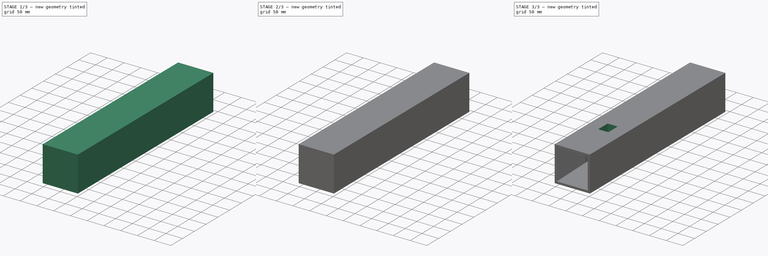
[diagram: build sequence overview — one tinted view per stage of 3, left to right]
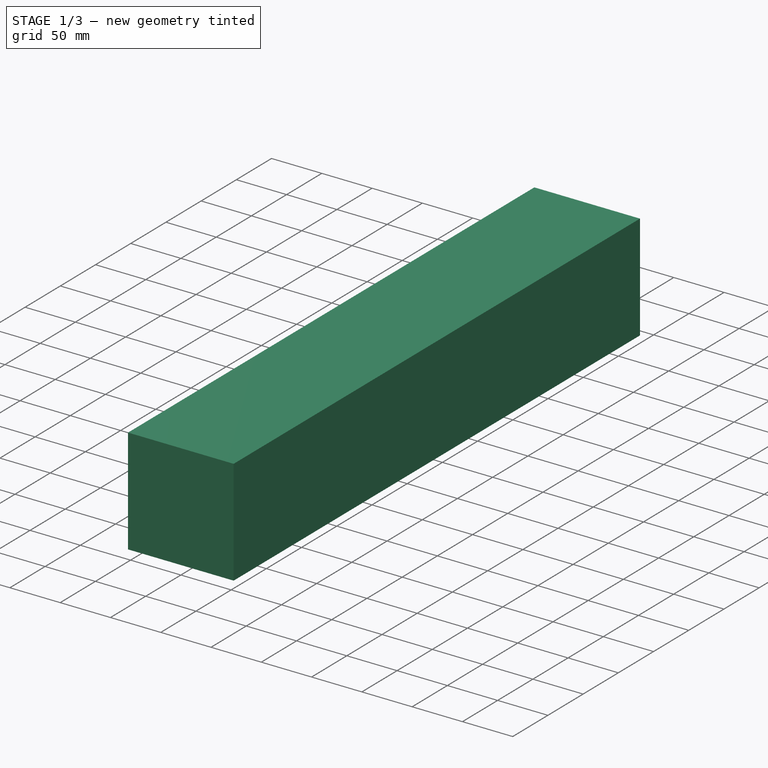
[diagram: stage 1 of 3 — iso view after this stage's code; geometry added in this stage tinted green]
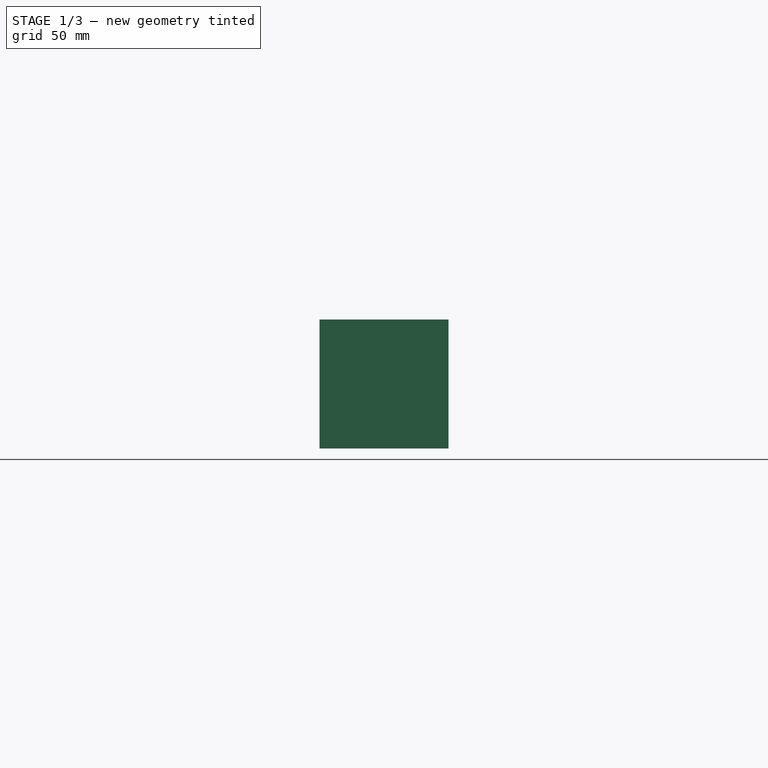
[diagram: stage 1 of 3 — front view after this stage's code; geometry added in this stage tinted green]
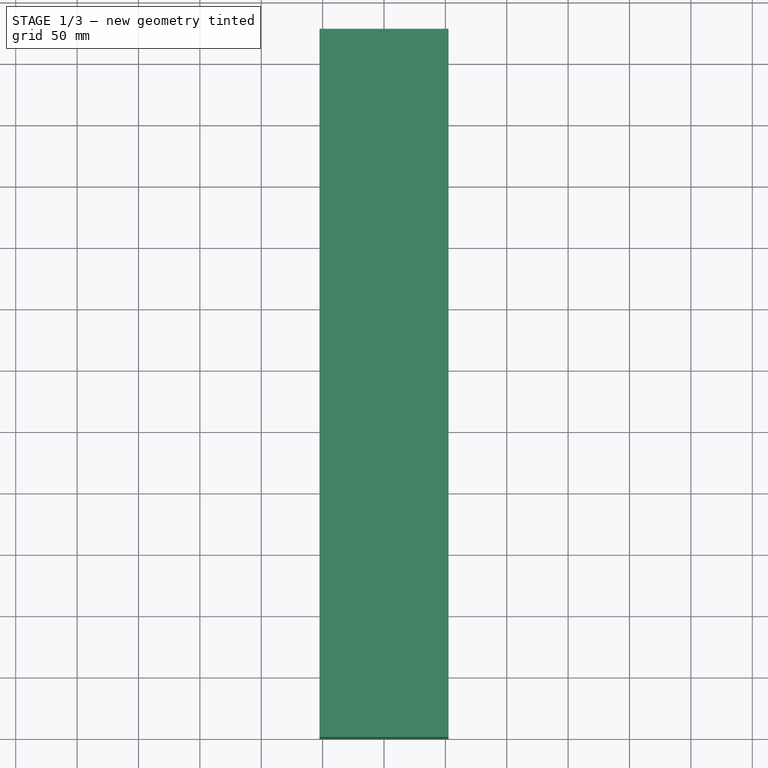
[diagram: stage 1 of 3 — top view after this stage's code; geometry added in this stage tinted green]
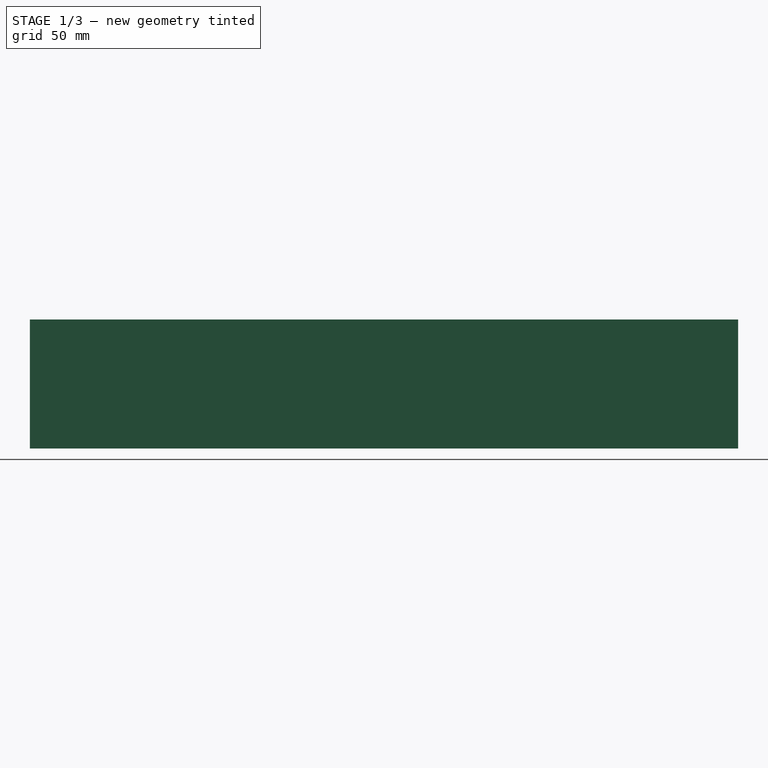
[diagram: stage 1 of 3 — right view after this stage's code; geometry added in this stage tinted green]
FCSTD DOCUMENT  (FreeCAD 2024.2R37240 (Git))
Label: Tunel de vento
License: All rights reserved
LicenseURL: https://en.wikipedia.org/wiki/All_rights_reserved
objects: Sketcher::SketchObject×5, PartDesign::Body×5, PartDesign::Pad×4, PartDesign::Boolean×2, PartDesign::Pocket×1
note: 22 computed .brp shape members not serialized (recipe doc carries the construction recipe); baked Part::Feature solids carry a one-line shape summary decoded from their .brp

FEATURE [PartDesign::Body] Body001
  Group = -> [Sketch001,Pad001]
  Origin = -> Origin001
  Tip = -> Pad001
FEATURE [Sketcher::SketchObject] Sketch002
  AttachmentSupport = -> [YZ_Plane002]
  FullyConstrained = true
  MapMode = 5
  Placement = pos=(0,0,0) rot=(0.57735,0.57735,0.57735;2.0944rad)
  sketch-geometry (20):
    g0: GeomPoint X=0 Y=46 Z=0
    g1: GeomPoint X=92 Y=26.5 Z=0
    g2: GeomPoint X=276 Y=26.5 Z=0
    g3: GeomPoint X=552 Y=46 Z=0
    g4: LineSegment StartX=0 StartY=46 StartZ=0 EndX=92 EndY=26.5 EndZ=0
    g5: LineSegment StartX=92 StartY=26.5 StartZ=0 EndX=276 EndY=26.5 EndZ=0
    g6: LineSegment StartX=276 StartY=26.5 StartZ=0 EndX=552 EndY=46 EndZ=0
    g7: GeomPoint X=0 Y=-46 Z=0
    g8: GeomPoint X=92 Y=-26.5 Z=0
    g9: GeomPoint X=276 Y=-26.5 Z=0
    g10: GeomPoint X=552 Y=-46 Z=0
    g11: LineSegment StartX=0 StartY=-46 StartZ=0 EndX=92 EndY=-26.5 EndZ=0
    g12: LineSegment StartX=92 StartY=-26.5 StartZ=0 EndX=276 EndY=-26.5 EndZ=0
    g13: LineSegment StartX=276 StartY=-26.5 StartZ=0 EndX=552 EndY=-46 EndZ=0
    g14: LineSegment StartX=0 StartY=-46 StartZ=0 EndX=0 EndY=46 EndZ=0
    g15: GeomPoint X=577 Y=46 Z=0
    g16: GeomPoint X=577 Y=-46 Z=0
    g17: LineSegment StartX=552 StartY=46 StartZ=0 EndX=577 EndY=46 EndZ=0
    g18: LineSegment StartX=577 StartY=-46 StartZ=0 EndX=577 EndY=46 EndZ=0
    g19: LineSegment StartX=577 StartY=-46 StartZ=0 EndX=552 EndY=-46 EndZ=0
  constraints (35):
    c: PointOnObject(g0,g-2)
    c: DistanceY(g-1,g0) = 46
    c: DistanceY(g-1,g1) = 26.5
    c: Coincident(g4,g0)
    c: Coincident(g4,g1)
    c: DistanceX(g0,g1) = 92
    c: DistanceX(g1,g2) = 184
    c: DistanceX(g2,g3) = 276
    c: Coincident(g5,g1)
    c: Coincident(g5,g2)
    c: Coincident(g5,g6)
    c: Coincident(g6,g3)
    c: DistanceY(g-1,g3) = 46
    c: DistanceY(g-1,g2) = 26.5
    c: Coincident(g11,g7)
    c: Coincident(g11,g8)
    c: Coincident(g11,g12)
    c: Coincident(g12,g9)
    c: Coincident(g12,g13)
    c: Coincident(g13,g10)
    c: Coincident(g14,g7)
    c: Coincident(g14,g0)
    c: Symmetric(g0,g7,g-1)
    c: Symmetric(g1,g8,g-1)
    c: Symmetric(g9,g2,g-1)
    c: Symmetric(g10,g3,g-1)
    c: Coincident(g17,g3)
    c: Coincident(g17,g15)
    c: Coincident(g18,g16)
    c: Coincident(g18,g15)
    c: Coincident(g19,g16)
    c: Coincident(g19,g10)
    c: Horizontal(g19)
    c: Symmetric(g15,g16,g-1)
    c: DistanceX(g3,g15) = 25
FEATURE [PartDesign::Pad] Pad002
  Direction = (1,0,0)
  Length = 46
  Length2 = 46
  Placement = pos=(0,0,0) rot=(1,1,1;2.0944rad)
  Profile = -> Sketch002
  ReferenceAxis = -> Sketch002 [N_Axis]
  Refine = true
  Suppressed = false
  Type = 4
FEATURE [PartDesign::Body] Body003
  Group = -> [Boolean]
  Origin = -> Origin003
  Tip = -> Boolean
FEATURE [Sketcher::SketchObject] Sketch003
  AttachmentSupport = -> [XZ_Plane004]
  FullyConstrained = true
  MapMode = 5
  Placement = pos=(0,0,0) rot=(1,0,0;1.5708rad)
  sketch-geometry (5):
    g0: LineSegment StartX=-52.5 StartY=-52.5 StartZ=0 EndX=52.5 EndY=-52.5 EndZ=0
    g1: LineSegment StartX=52.5 StartY=-52.5 StartZ=0 EndX=52.5 EndY=52.5 EndZ=0
    g2: LineSegment StartX=52.5 StartY=52.5 StartZ=0 EndX=-52.5 EndY=52.5 EndZ=0
    g3: LineSegment StartX=-52.5 StartY=52.5 StartZ=0 EndX=-52.5 EndY=-52.5 EndZ=0
    g4: GeomPoint X=0 Y=0 Z=0
  constraints (12):
    c: Coincident(g0,g1)
    c: Coincident(g1,g2)
    c: Coincident(g2,g3)
    c: Coincident(g3,g0)
    c: Horizontal(g0)
    c: Horizontal(g2)
    c: Vertical(g1)
    c: Vertical(g3)
    c: Symmetric(g2,g0,g4)
    c: Distance(g1,g3) = 105
    c: Distance(g0,g2) = 105
    c: Coincident(g4,g-1)
FEATURE [PartDesign::Pad] Pad003
  Direction = (0,-1,2e-16)
  Length = 577
  Length2 = 10
  Placement = pos=(0,0,0) rot=(1,0,0;1.5708rad)
  Profile = -> Sketch003
  ReferenceAxis = -> Sketch003 [N_Axis]
  Refine = true
  Reversed = true
  Suppressed = false
  Type = 0
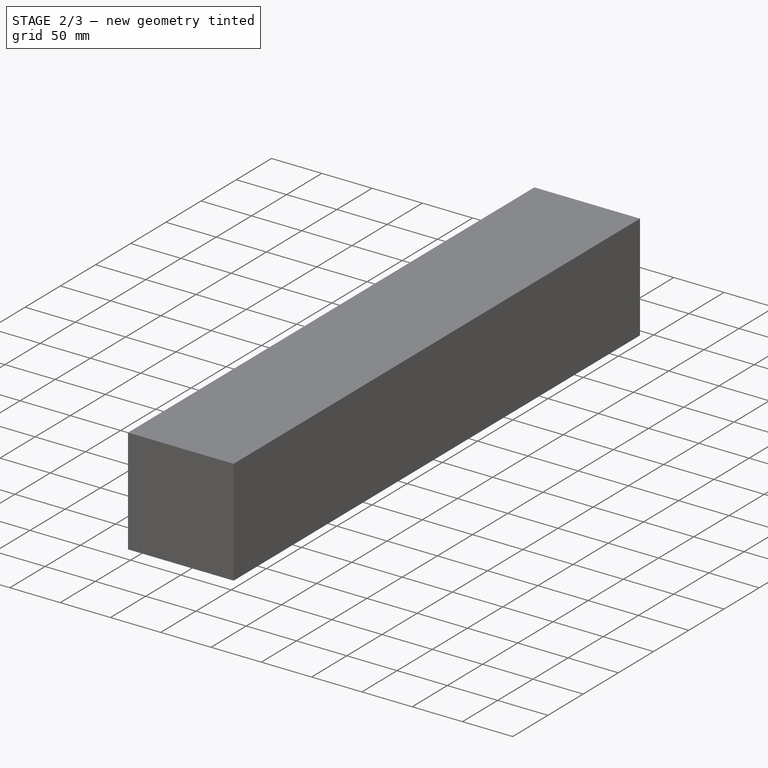
[diagram: stage 2 of 3 — iso view after this stage's code; geometry added in this stage tinted green]
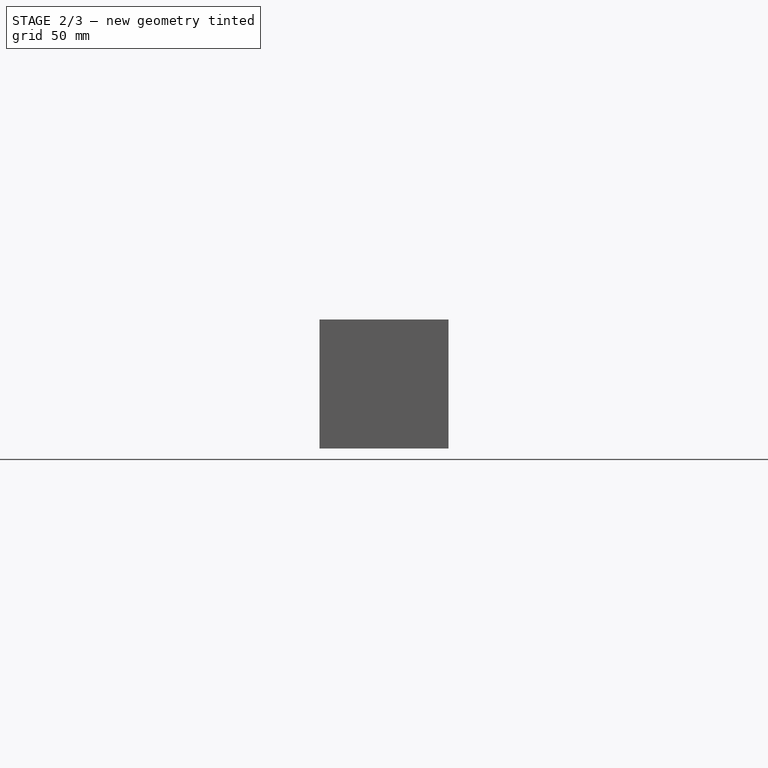
[diagram: stage 2 of 3 — front view after this stage's code; geometry added in this stage tinted green]
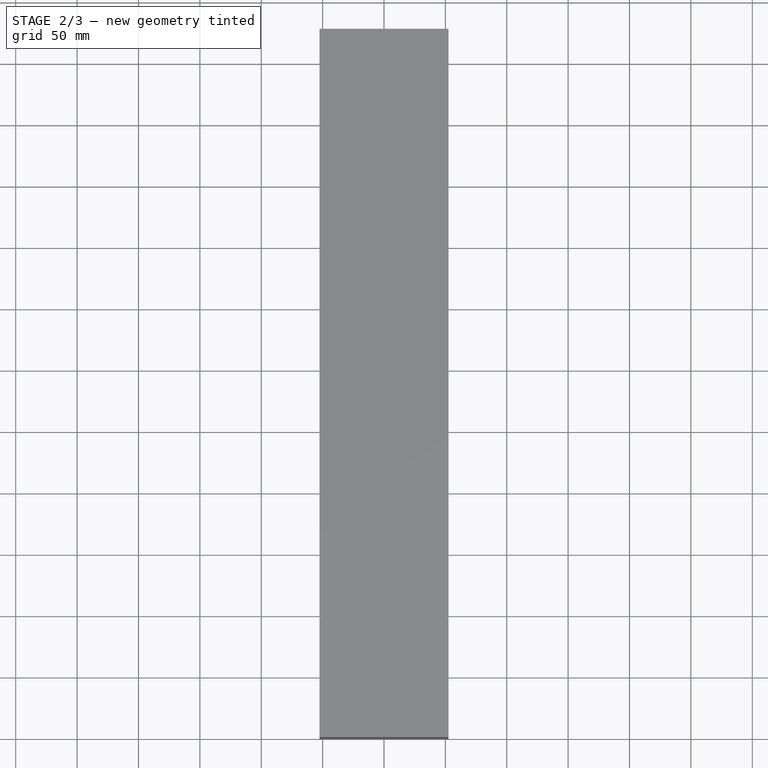
[diagram: stage 2 of 3 — top view after this stage's code; geometry added in this stage tinted green]
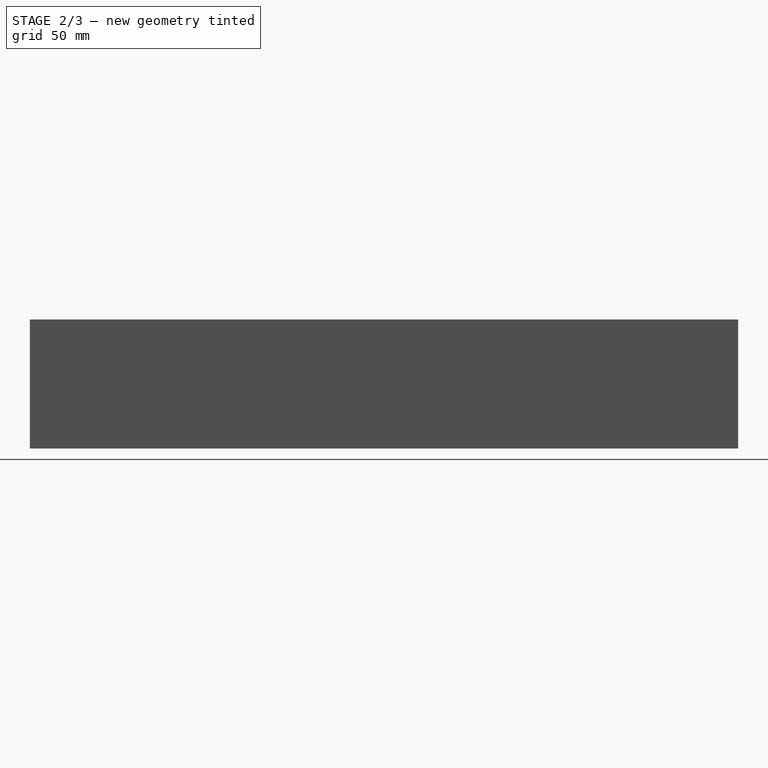
[diagram: stage 2 of 3 — right view after this stage's code; geometry added in this stage tinted green]
FEATURE [Sketcher::SketchObject] Sketch
  AttachmentSupport = -> [XZ_Plane]
  FullyConstrained = true
  MapMode = 5
  Placement = pos=(0,0,0) rot=(1,0,0;1.5708rad)
  sketch-geometry (5):
    g0: LineSegment StartX=-46 StartY=-46 StartZ=0 EndX=46 EndY=-46 EndZ=0
    g1: LineSegment StartX=46 StartY=-46 StartZ=0 EndX=46 EndY=46 EndZ=0
    g2: LineSegment StartX=46 StartY=46 StartZ=0 EndX=-46 EndY=46 EndZ=0
    g3: LineSegment StartX=-46 StartY=46 StartZ=0 EndX=-46 EndY=-46 EndZ=0
    g4: GeomPoint X=0 Y=0 Z=0
  constraints (12):
    c: Coincident(g0,g1)
    c: Coincident(g1,g2)
    c: Coincident(g2,g3)
    c: Coincident(g3,g0)
    c: Horizontal(g0)
    c: Horizontal(g2)
    c: Vertical(g1)
    c: Vertical(g3)
    c: Symmetric(g2,g0,g4)
    c: Distance(g1,g3) = 92
    c: Distance(g0,g2) = 92
    c: Coincident(g4,g-1)
FEATURE [PartDesign::Pad] Pad
  Direction = (0,-1,2e-16)
  Length = 577
  Length2 = 10
  Placement = pos=(0,0,0) rot=(1,0,0;1.5708rad)
  Profile = -> Sketch
  ReferenceAxis = -> Sketch [N_Axis]
  Refine = true
  Reversed = true
  Suppressed = false
  Type = 0
FEATURE [PartDesign::Body] Body
  Group = -> [Sketch,Pad]
  Origin = -> Origin
  Tip = -> Pad
FEATURE [Sketcher::SketchObject] Sketch001
  AttachmentSupport = -> [XY_Plane001]
  FullyConstrained = true
  MapMode = 5
  sketch-geometry (19):
    g0: GeomPoint X=-46 Y=0 Z=0
    g1: GeomPoint X=46 Y=0 Z=0
    g2: GeomPoint X=26.5 Y=92 Z=0
    g3: GeomPoint X=-26.5 Y=92 Z=0
    g4: LineSegment StartX=-26.5 StartY=92 StartZ=0 EndX=-46 EndY=0 EndZ=0
    g5: LineSegment StartX=26.5 StartY=92 StartZ=0 EndX=46 EndY=0 EndZ=0
    g6: GeomPoint X=26.5 Y=276 Z=0
    g7: GeomPoint X=46 Y=552 Z=0
    g8: GeomPoint X=-26.5 Y=276 Z=0
    g9: LineSegment StartX=-26.5 StartY=92 StartZ=0 EndX=-26.5 EndY=276 EndZ=0
    g10: LineSegment StartX=-26.5 StartY=276 StartZ=0 EndX=-46 EndY=552 EndZ=0
    g11: LineSegment StartX=26.5 StartY=276 StartZ=0 EndX=46 EndY=552 EndZ=0
    g12: LineSegment StartX=26.5 StartY=92 StartZ=0 EndX=26.5 EndY=276 EndZ=0
    g13: LineSegment StartX=-46 StartY=0 StartZ=0 EndX=46 EndY=0 EndZ=0
    g14: GeomPoint X=-46 Y=577 Z=0
    g15: GeomPoint X=46 Y=577 Z=0
    g16: LineSegment StartX=46 StartY=552 StartZ=0 EndX=46 EndY=577 EndZ=0
    g17: LineSegment StartX=46 StartY=577 StartZ=0 EndX=-46 EndY=577 EndZ=0
    g18: LineSegment StartX=-46 StartY=577 StartZ=0 EndX=-46 EndY=552 EndZ=0
  constraints (34):
    c: PointOnObject(g0,g-1)
    c: Symmetric(g1,g0,g-2)
    c: DistanceX(g-1,g1) = 46
    c: DistanceY(g1,g2) = 92
    c: DistanceX(g-1,g2) = 26.5
    c: Symmetric(g2,g3,g-2)
    c: Coincident(g4,g3)
    c: Coincident(g4,g0)
    c: Coincident(g5,g2)
    c: Coincident(g5,g1)
    c: DistanceX(g-1,g6) = 26.5
    c: DistanceY(g2,g6) = 184
    c: DistanceX(g-1,g7) = 46
    c: DistanceY(g-1,g7) = 552
    c: Symmetric(g8,g6,g-2)
    c: Symmetric(g10,g7,g-2)
    c: Coincident(g9,g3)
    c: Coincident(g9,g8)
    c: Coincident(g10,g8)
    c: Coincident(g11,g6)
    c: Coincident(g11,g7)
    c: Coincident(g12,g2)
    c: Coincident(g12,g6)
    c: Coincident(g13,g0)
    c: Coincident(g13,g1)
    c: Coincident(g16,g7)
    c: Coincident(g16,g15)
    c: Coincident(g17,g15)
    c: Coincident(g17,g14)
    c: Coincident(g18,g14)
    c: Coincident(g18,g10)
    c: DistanceX(g-1,g15) = 46
    c: DistanceY(g7,g15) = 25
    c: Symmetric(g14,g15,g-2)
FEATURE [PartDesign::Pad] Pad001
  Direction = (0,0,1)
  Length = 46
  Length2 = 46
  Profile = -> Sketch001
  ReferenceAxis = -> Sketch001 [N_Axis]
  Refine = true
  Suppressed = false
  Type = 4
FEATURE [PartDesign::Body] Body002
  Group = -> [Sketch002,Pad002]
  Origin = -> Origin002
  Tip = -> Pad002
FEATURE [PartDesign::Boolean] Boolean
  Group = -> [Body,Body001,Body002]
  Refine = true
  Suppressed = false
  Type = 2
  UsePlacement = true
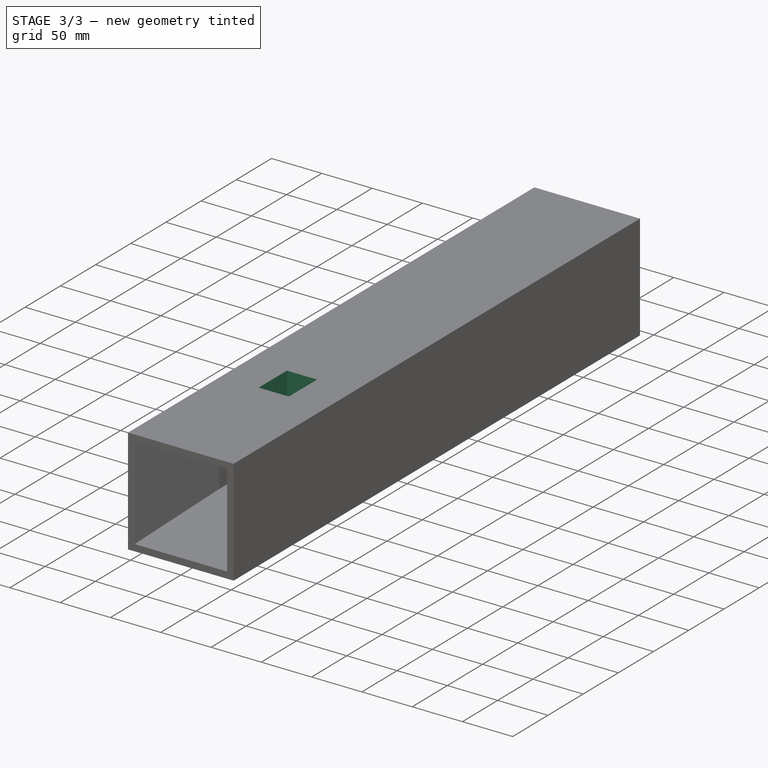
[diagram: stage 3 of 3 — iso view after this stage's code; geometry added in this stage tinted green]
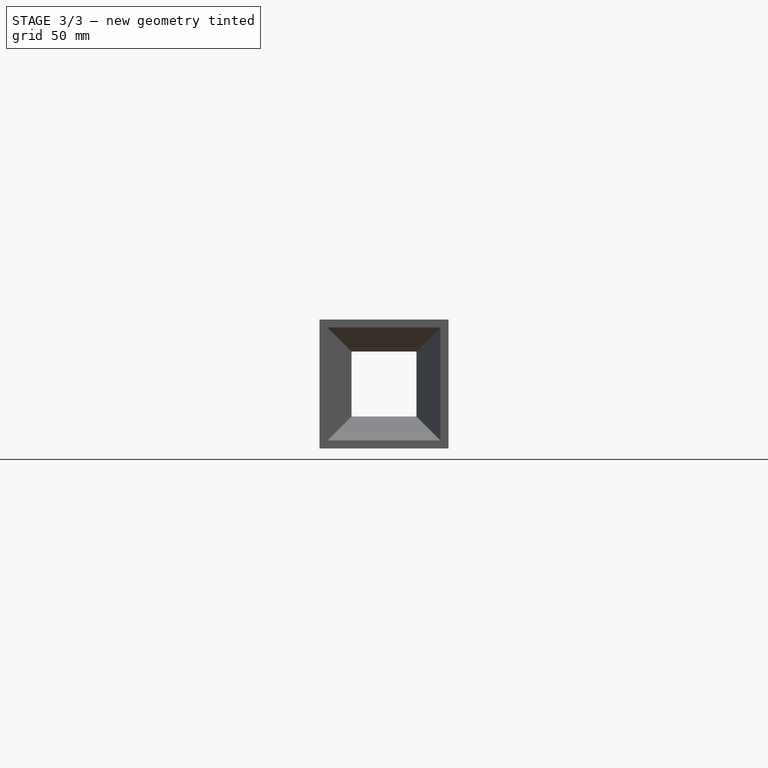
[diagram: stage 3 of 3 — front view after this stage's code; geometry added in this stage tinted green]
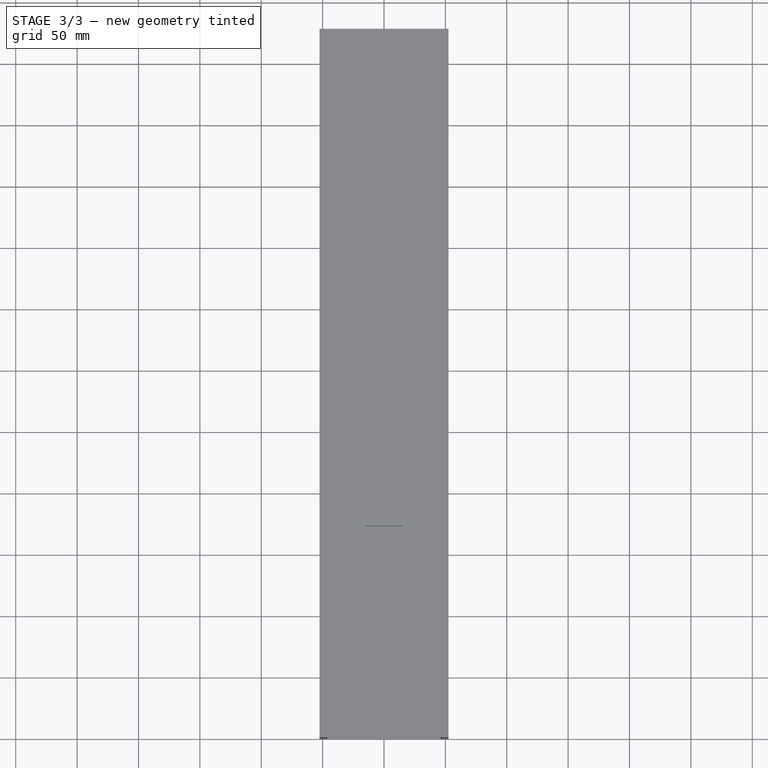
[diagram: stage 3 of 3 — top view after this stage's code; geometry added in this stage tinted green]
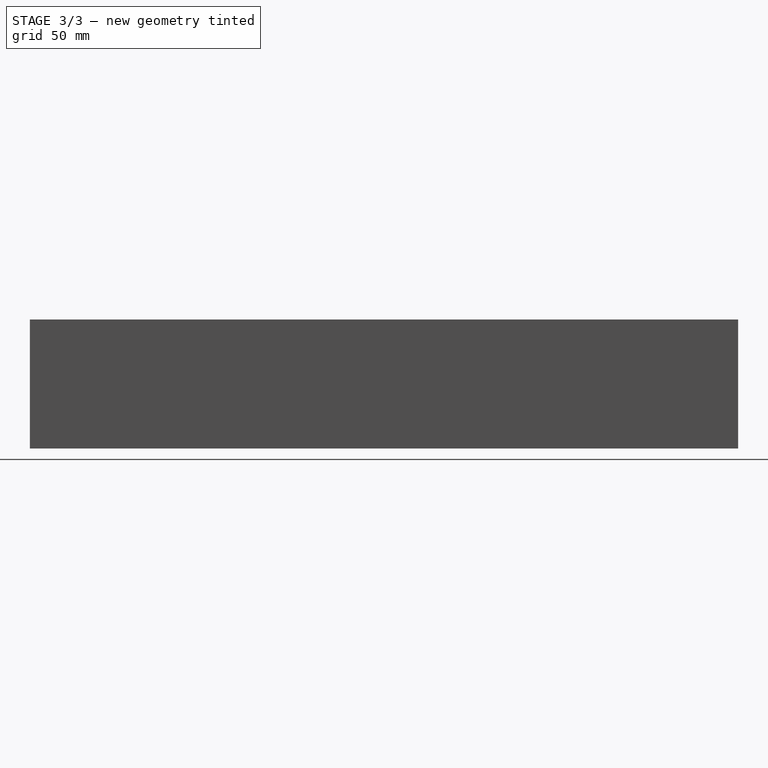
[diagram: stage 3 of 3 — right view after this stage's code; geometry added in this stage tinted green]
FEATURE [PartDesign::Boolean] Boolean001
  BaseFeature = -> Pad003
  Group = -> [Body003]
  Refine = true
  Suppressed = false
  Type = 1
  UsePlacement = true
FEATURE [Sketcher::SketchObject] Sketch004
  AttachmentSupport = -> [Boolean001]
  FullyConstrained = true
  MapMode = 5
  Placement = pos=(0,1.17e-14,52.5) rot=(0,0,1;0rad)
  sketch-geometry (8):
    g0: GeomPoint X=-15 Y=172 Z=0
    g1: GeomPoint X=15 Y=172 Z=0
    g2: GeomPoint X=15 Y=132 Z=0
    g3: GeomPoint X=-15 Y=132 Z=0
    g4: LineSegment StartX=-15 StartY=172 StartZ=0 EndX=15 EndY=172 EndZ=0
    g5: LineSegment StartX=15 StartY=132 StartZ=0 EndX=15 EndY=172 EndZ=0
    g6: LineSegment StartX=-15 StartY=132 StartZ=0 EndX=15 EndY=132 EndZ=0
    g7: LineSegment StartX=-15 StartY=132 StartZ=0 EndX=-15 EndY=172 EndZ=0
  constraints (14):
    c: DistanceX(g3,g-1) = 15
    c: DistanceY(g-1,g3) = 132
    c: Symmetric(g3,g2,g-2)
    c: DistanceY(g3,g0) = 40
    c: DistanceX(g0,g3) = 0
    c: Symmetric(g0,g1,g-2)
    c: Coincident(g4,g0)
    c: Coincident(g4,g1)
    c: Coincident(g5,g2)
    c: Coincident(g5,g1)
    c: Coincident(g6,g3)
    c: Coincident(g6,g2)
    c: Coincident(g7,g3)
    c: Coincident(g7,g0)
FEATURE [PartDesign::Pocket] Pocket
  BaseFeature = -> Boolean001
  Direction = (0,0,-1)
  Length = 27
  Length2 = 5
  Profile = -> Sketch004
  ReferenceAxis = -> Sketch004 [N_Axis]
  Refine = true
  Suppressed = false
  Type = 0
FEATURE [PartDesign::Body] Body004
  Group = -> [Sketch003,Pad003,Boolean001,Sketch004,Pocket]
  Origin = -> Origin004
  Tip = -> Pocket
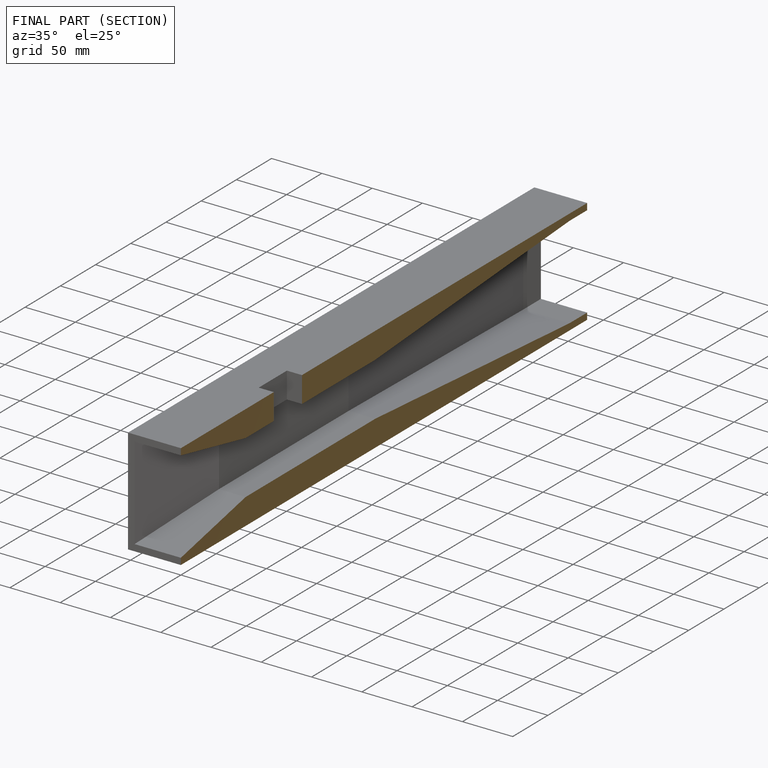
[diagram: finished part — half-section view (interior)]
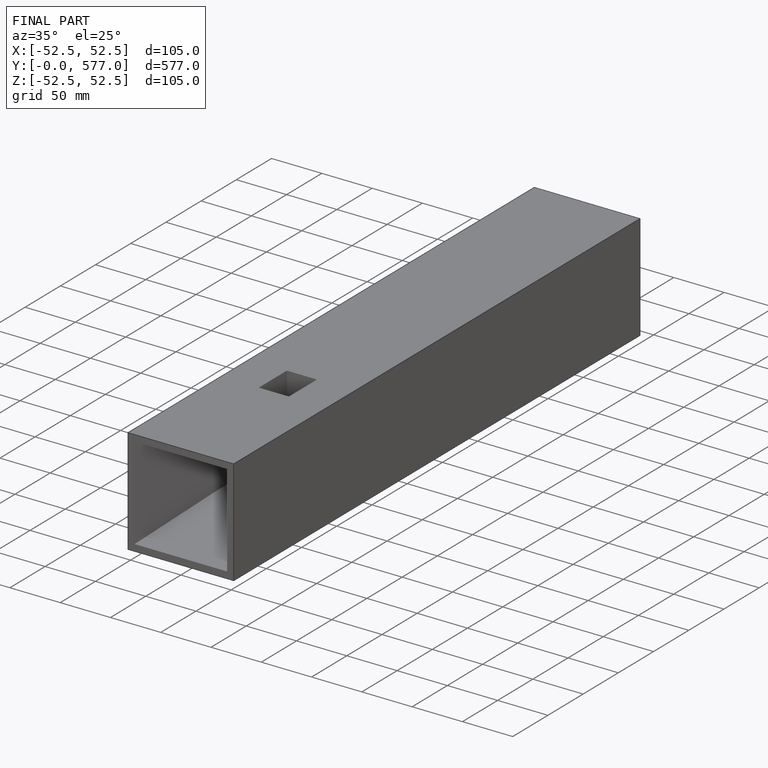
[diagram: finished part — iso view with bounding-box wireframe]
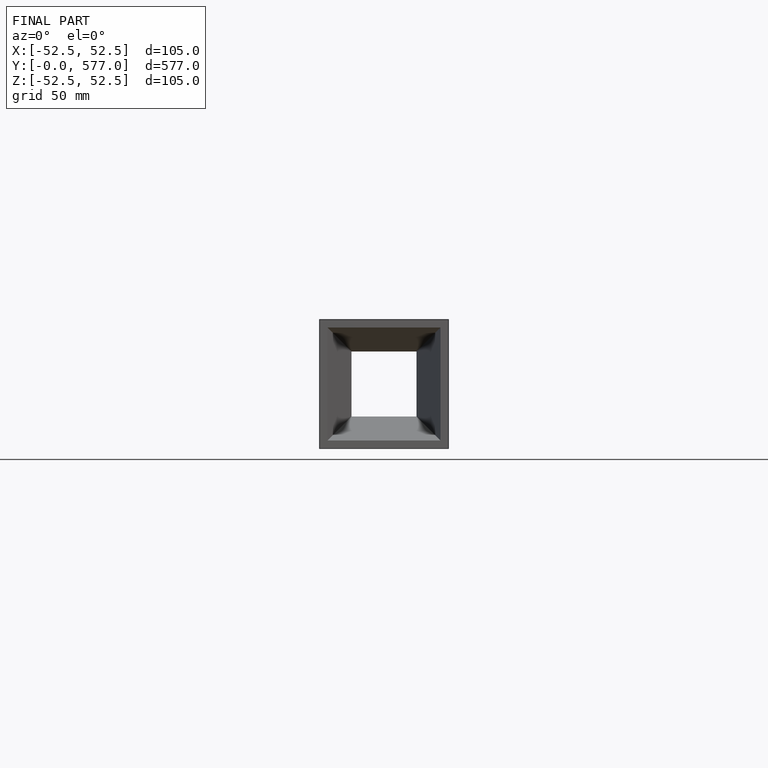
[diagram: finished part — front view with bounding-box wireframe]
